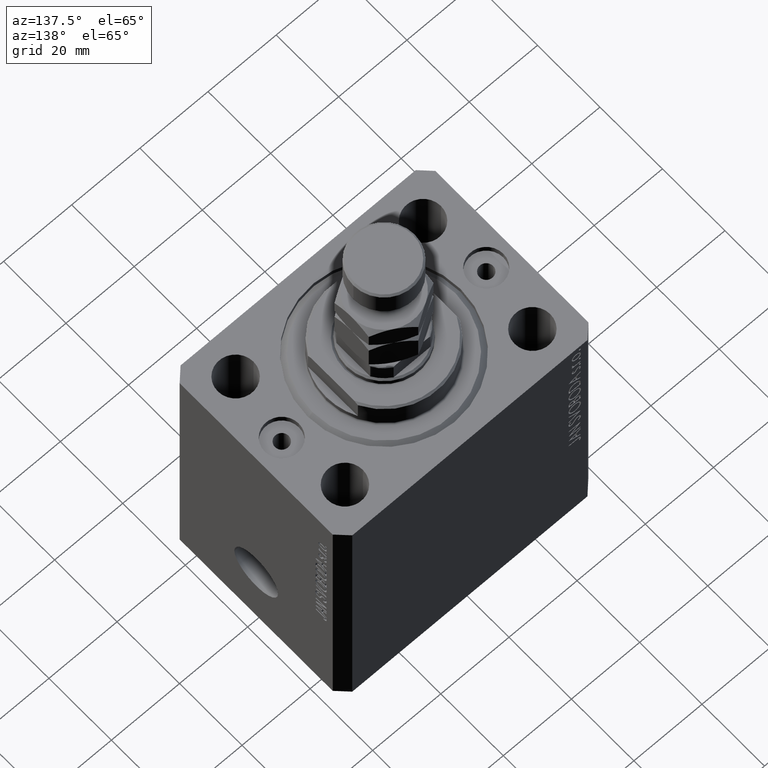
[diagram: clean part render]
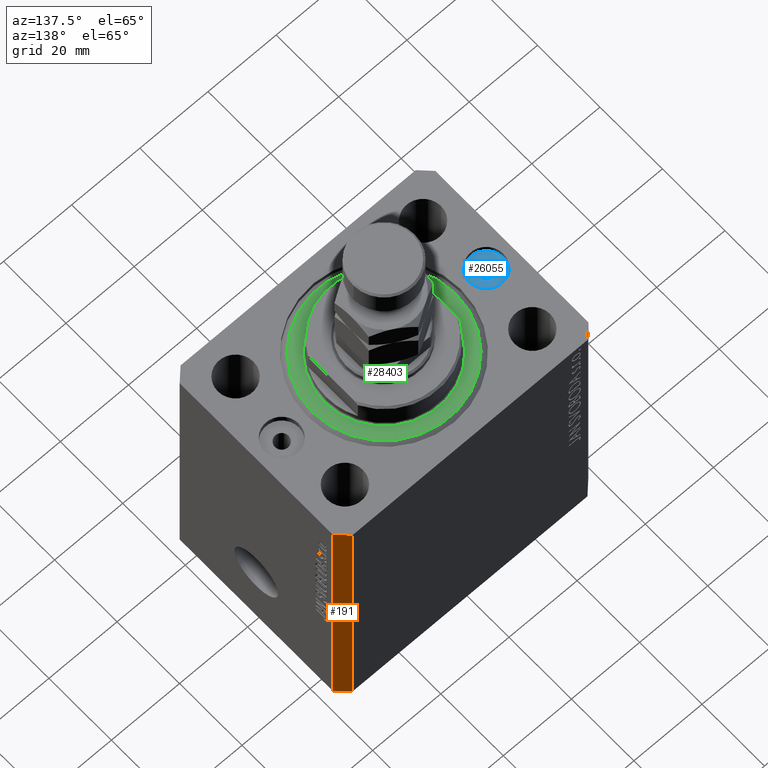
[diagram: same view with three faces highlighted in distinct colors, each labeled with its STEP entity id]
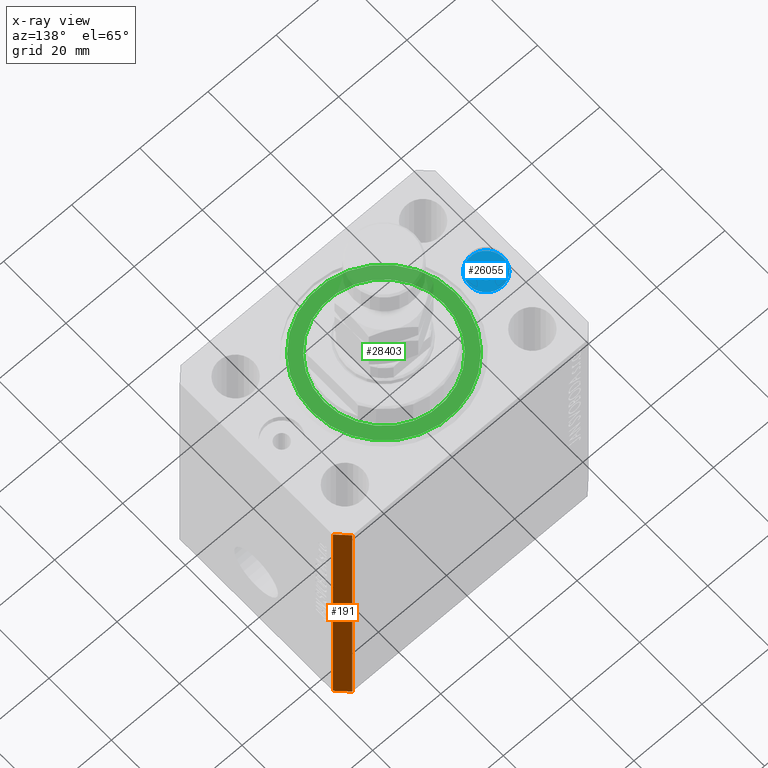
[diagram: x-ray of the same camera — body ghosted, the three highlighted faces saturated]
A machine part, auxiliary view with three faces highlighted in distinct colors.
The next image is the same camera in x-ray (body ghosted, the three faces saturated) — at least one of them is partly hidden behind the body in this view.
Their STEP definitions:

[orange] entity #191 — the highlighted planar face has unit normal (0.7071, 0.7071, 0).
#191 = ADVANCED_FACE ( 'NONE', ( #25370 ), #28414, .T. ) ;
#4377 = ORIENTED_EDGE ( 'NONE', *, *, #36372, .F. ) ;
#4619 = EDGE_CURVE ( 'NONE', #36504, #10975, #15011, .T. ) ;
#5977 = VECTOR ( 'NONE', #41393, 1000.000000000000000 ) ;
#6267 = VERTEX_POINT ( 'NONE', #34941 ) ;
#6666 = AXIS2_PLACEMENT_3D ( 'NONE', #42137, #42615, #14168 ) ;
#9841 = LINE ( 'NONE', #31305, #43886 ) ;
#10047 = DIRECTION ( 'NONE',  ( -0.7071067811865364705, 0.7071067811865584529, 0.000000000000000000 ) ) ;
#10975 = VERTEX_POINT ( 'NONE', #31612 ) ;
#12194 = DIRECTION ( 'NONE',  ( 0.000000000000000000, 0.000000000000000000, 1.000000000000000000 ) ) ;
#13976 = ORIENTED_EDGE ( 'NONE', *, *, #15030, .T. ) ;
#13984 = EDGE_LOOP ( 'NONE', ( #4377, #19964, #13976, #45891 ) ) ;
#14168 = DIRECTION ( 'NONE',  ( -0.7071067811865364705, 0.7071067811865584529, 0.000000000000000000 ) ) ;
#14767 = CARTESIAN_POINT ( 'NONE',  ( 34.50000000000056843, 27.50000000000000000, -80.00000000000000000 ) ) ;
#15011 = LINE ( 'NONE', #14767, #22751 ) ;
#15030 = EDGE_CURVE ( 'NONE', #34639, #36504, #9841, .T. ) ;
#17730 = LINE ( 'NONE', #31982, #21520 ) ;
#19964 = ORIENTED_EDGE ( 'NONE', *, *, #25225, .F. ) ;
#21233 = CARTESIAN_POINT ( 'NONE',  ( 34.50000000000056843, 27.50000000000000000, -80.00000000000000000 ) ) ;
#21520 = VECTOR ( 'NONE', #10047, 1000.000000000000114 ) ;
#22479 = CARTESIAN_POINT ( 'NONE',  ( 37.50000000000051870, 24.49999999999995381, -80.00000000000000000 ) ) ;
#22751 = VECTOR ( 'NONE', #12194, 1000.000000000000000 ) ;
#25225 = EDGE_CURVE ( 'NONE', #34639, #6267, #37892, .T. ) ;
#25370 = FACE_OUTER_BOUND ( 'NONE', #13984, .T. ) ;
#28414 = PLANE ( 'NONE',  #6666 ) ;
#31305 = CARTESIAN_POINT ( 'NONE',  ( 37.50000000000051870, 24.49999999999995381, -80.00000000000000000 ) ) ;
#31612 = CARTESIAN_POINT ( 'NONE',  ( 34.50000000000056843, 27.50000000000000000, 0.000000000000000000 ) ) ;
#31982 = CARTESIAN_POINT ( 'NONE',  ( 37.50000000000051870, 24.49999999999995381, 0.000000000000000000 ) ) ;
#34639 = VERTEX_POINT ( 'NONE', #22479 ) ;
#34781 = DIRECTION ( 'NONE',  ( -0.7071067811865364705, 0.7071067811865584529, 0.000000000000000000 ) ) ;
#34941 = CARTESIAN_POINT ( 'NONE',  ( 37.50000000000051870, 24.49999999999995381, 0.000000000000000000 ) ) ;
#36372 = EDGE_CURVE ( 'NONE', #6267, #10975, #17730, .T. ) ;
#36504 = VERTEX_POINT ( 'NONE', #21233 ) ;
#37892 = LINE ( 'NONE', #44684, #5977 ) ;
#41393 = DIRECTION ( 'NONE',  ( 0.000000000000000000, 0.000000000000000000, 1.000000000000000000 ) ) ;
#42137 = CARTESIAN_POINT ( 'NONE',  ( 37.50000000000051870, 24.49999999999995381, -80.00000000000000000 ) ) ;
#42615 = DIRECTION ( 'NONE',  ( 0.7071067811865585639, 0.7071067811865365815, -0.000000000000000000 ) ) ;
#43886 = VECTOR ( 'NONE', #34781, 1000.000000000000114 ) ;
#44684 = CARTESIAN_POINT ( 'NONE',  ( 37.50000000000051870, 24.49999999999995381, -80.00000000000000000 ) ) ;
#45891 = ORIENTED_EDGE ( 'NONE', *, *, #4619, .T. ) ;

[blue] entity #26055 — the highlighted planar face has unit normal (0, 0, 1).
#790 = VERTEX_POINT ( 'NONE', #42145 ) ;
#1301 = AXIS2_PLACEMENT_3D ( 'NONE', #8698, #32976, #4748 ) ;
#1708 = DIRECTION ( 'NONE',  ( 1.000000000000000000, 0.000000000000000000, 0.000000000000000000 ) ) ;
#2250 = DIRECTION ( 'NONE',  ( 1.000000000000000000, 0.000000000000000000, -0.000000000000000000 ) ) ;
#4748 = DIRECTION ( 'NONE',  ( 1.000000000000000000, 0.000000000000000000, 0.000000000000000000 ) ) ;
#5646 = CARTESIAN_POINT ( 'NONE',  ( -30.00000000000000000, 0.000000000000000000, -1.899999999999999911 ) ) ;
#5729 = DIRECTION ( 'NONE',  ( 0.000000000000000000, 0.000000000000000000, 1.000000000000000000 ) ) ;
#7429 = CIRCLE ( 'NONE', #33517, 5.000000000000000888 ) ;
#7823 = ORIENTED_EDGE ( 'NONE', *, *, #18984, .T. ) ;
#8698 = CARTESIAN_POINT ( 'NONE',  ( -30.00000000000000000, 0.000000000000000000, -1.899999999999999911 ) ) ;
#10163 = CARTESIAN_POINT ( 'NONE',  ( -30.00000000000000000, 0.000000000000000000, -1.899999999999999911 ) ) ;
#10484 = CARTESIAN_POINT ( 'NONE',  ( -32.00000000000000000, 2.449293598294701977E-16, -1.899999999999999911 ) ) ;
#10992 = CARTESIAN_POINT ( 'NONE',  ( -30.00000000000000000, 0.000000000000000000, -1.899999999999999911 ) ) ;
#12708 = CIRCLE ( 'NONE', #35029, 1.999999999999998224 ) ;
#13555 = VERTEX_POINT ( 'NONE', #10484 ) ;
#13979 = AXIS2_PLACEMENT_3D ( 'NONE', #10992, #32687, #15192 ) ;
#15192 = DIRECTION ( 'NONE',  ( 1.000000000000000000, 0.000000000000000000, 0.000000000000000000 ) ) ;
#15711 = EDGE_LOOP ( 'NONE', ( #44248, #25086 ) ) ;
#16462 = FACE_BOUND ( 'NONE', #15711, .T. ) ;
#17510 = CARTESIAN_POINT ( 'NONE',  ( -28.00000000000000000, 0.000000000000000000, -1.899999999999999911 ) ) ;
#18091 = DIRECTION ( 'NONE',  ( 0.000000000000000000, 0.000000000000000000, 1.000000000000000000 ) ) ;
#18984 = EDGE_CURVE ( 'NONE', #29156, #790, #21413, .T. ) ;
#20563 = ORIENTED_EDGE ( 'NONE', *, *, #43079, .T. ) ;
#21413 = CIRCLE ( 'NONE', #13979, 5.000000000000000888 ) ;
#22365 = AXIS2_PLACEMENT_3D ( 'NONE', #41189, #5729, #2250 ) ;
#23695 = VERTEX_POINT ( 'NONE', #17510 ) ;
#24391 = DIRECTION ( 'NONE',  ( 1.000000000000000000, 0.000000000000000000, 0.000000000000000000 ) ) ;
#25086 = ORIENTED_EDGE ( 'NONE', *, *, #34676, .F. ) ;
#26055 = ADVANCED_FACE ( 'NONE', ( #16462, #31606 ), #45818, .T. ) ;
#29156 = VERTEX_POINT ( 'NONE', #36175 ) ;
#30156 = DIRECTION ( 'NONE',  ( 0.000000000000000000, 0.000000000000000000, 1.000000000000000000 ) ) ;
#31606 = FACE_OUTER_BOUND ( 'NONE', #45533, .T. ) ;
#32687 = DIRECTION ( 'NONE',  ( 0.000000000000000000, 0.000000000000000000, 1.000000000000000000 ) ) ;
#32976 = DIRECTION ( 'NONE',  ( 0.000000000000000000, 0.000000000000000000, 1.000000000000000000 ) ) ;
#33517 = AXIS2_PLACEMENT_3D ( 'NONE', #5646, #30156, #1708 ) ;
#34676 = EDGE_CURVE ( 'NONE', #13555, #23695, #35530, .T. ) ;
#35029 = AXIS2_PLACEMENT_3D ( 'NONE', #10163, #18091, #24391 ) ;
#35530 = CIRCLE ( 'NONE', #1301, 1.999999999999998224 ) ;
#36175 = CARTESIAN_POINT ( 'NONE',  ( -24.99999999999999645, 0.000000000000000000, -1.899999999999999911 ) ) ;
#41189 = CARTESIAN_POINT ( 'NONE',  ( -30.00000000000000000, 0.000000000000000000, -1.899999999999999911 ) ) ;
#42145 = CARTESIAN_POINT ( 'NONE',  ( -34.99999999999999289, 6.123233995736768255E-16, -1.899999999999999911 ) ) ;
#43079 = EDGE_CURVE ( 'NONE', #790, #29156, #7429, .T. ) ;
#44248 = ORIENTED_EDGE ( 'NONE', *, *, #44915, .F. ) ;
#44915 = EDGE_CURVE ( 'NONE', #23695, #13555, #12708, .T. ) ;
#45533 = EDGE_LOOP ( 'NONE', ( #7823, #20563 ) ) ;
#45818 = PLANE ( 'NONE',  #22365 ) ;

[green] entity #28403 — the highlighted planar face has unit normal (0, 0, -1).
#1282 = ORIENTED_EDGE ( 'NONE', *, *, #29382, .T. ) ;
#1362 = AXIS2_PLACEMENT_3D ( 'NONE', #15827, #30062, #44268 ) ;
#3080 = CIRCLE ( 'NONE', #18731, 20.99999999999998934 ) ;
#3851 = CARTESIAN_POINT ( 'NONE',  ( 17.50000000000000000, 0.000000000000000000, -2.168404344971008868E-16 ) ) ;
#3928 = ORIENTED_EDGE ( 'NONE', *, *, #41473, .T. ) ;
#5597 = VERTEX_POINT ( 'NONE', #31106 ) ;
#5599 = FACE_OUTER_BOUND ( 'NONE', #24792, .T. ) ;
#8869 = CARTESIAN_POINT ( 'NONE',  ( 0.000000000000000000, 0.000000000000000000, 0.000000000000000000 ) ) ;
#9917 = VERTEX_POINT ( 'NONE', #3851 ) ;
#10076 = ORIENTED_EDGE ( 'NONE', *, *, #17824, .T. ) ;
#10110 = CIRCLE ( 'NONE', #12356, 17.50000000000000000 ) ;
#11342 = VERTEX_POINT ( 'NONE', #30144 ) ;
#12356 = AXIS2_PLACEMENT_3D ( 'NONE', #21072, #42058, #38554 ) ;
#13359 = AXIS2_PLACEMENT_3D ( 'NONE', #44010, #25606, #32838 ) ;
#15827 = CARTESIAN_POINT ( 'NONE',  ( 0.000000000000000000, 0.000000000000000000, 0.000000000000000000 ) ) ;
#17824 = EDGE_CURVE ( 'NONE', #5597, #9917, #10110, .T. ) ;
#18731 = AXIS2_PLACEMENT_3D ( 'NONE', #22817, #37031, #27028 ) ;
#19114 = FACE_BOUND ( 'NONE', #25009, .T. ) ;
#21072 = CARTESIAN_POINT ( 'NONE',  ( 0.000000000000000000, 0.000000000000000000, 0.000000000000000000 ) ) ;
#22817 = CARTESIAN_POINT ( 'NONE',  ( 0.000000000000000000, 0.000000000000000000, 0.000000000000000000 ) ) ;
#24792 = EDGE_LOOP ( 'NONE', ( #1282, #3928 ) ) ;
#25009 = EDGE_LOOP ( 'NONE', ( #32263, #10076 ) ) ;
#25606 = DIRECTION ( 'NONE',  ( -0.000000000000000000, -0.000000000000000000, -1.000000000000000000 ) ) ;
#27028 = DIRECTION ( 'NONE',  ( 1.000000000000000000, 0.000000000000000000, 0.000000000000000000 ) ) ;
#27428 = CIRCLE ( 'NONE', #1362, 17.50000000000000000 ) ;
#28403 = ADVANCED_FACE ( 'NONE', ( #19114, #5599 ), #30566, .F. ) ;
#28889 = CARTESIAN_POINT ( 'NONE',  ( -20.99999999999998934, 2.663606788145492628E-15, 0.000000000000000000 ) ) ;
#29382 = EDGE_CURVE ( 'NONE', #11342, #30173, #3080, .T. ) ;
#30062 = DIRECTION ( 'NONE',  ( 0.000000000000000000, 0.000000000000000000, 1.000000000000000000 ) ) ;
#30144 = CARTESIAN_POINT ( 'NONE',  ( 20.99999999999998934, 0.000000000000000000, 0.000000000000000000 ) ) ;
#30173 = VERTEX_POINT ( 'NONE', #28889 ) ;
#30566 = PLANE ( 'NONE',  #31353 ) ;
#31106 = CARTESIAN_POINT ( 'NONE',  ( -17.50000000000000000, 2.143131898507868643E-15, -2.168404344971008868E-16 ) ) ;
#31353 = AXIS2_PLACEMENT_3D ( 'NONE', #8869, #34048, #37323 ) ;
#32263 = ORIENTED_EDGE ( 'NONE', *, *, #37694, .T. ) ;
#32838 = DIRECTION ( 'NONE',  ( 1.000000000000000000, 0.000000000000000000, 0.000000000000000000 ) ) ;
#34048 = DIRECTION ( 'NONE',  ( 0.000000000000000000, 0.000000000000000000, 1.000000000000000000 ) ) ;
#37031 = DIRECTION ( 'NONE',  ( -0.000000000000000000, -0.000000000000000000, -1.000000000000000000 ) ) ;
#37323 = DIRECTION ( 'NONE',  ( 1.000000000000000000, 0.000000000000000000, -0.000000000000000000 ) ) ;
#37694 = EDGE_CURVE ( 'NONE', #9917, #5597, #27428, .T. ) ;
#38554 = DIRECTION ( 'NONE',  ( 1.000000000000000000, 0.000000000000000000, 0.000000000000000000 ) ) ;
#41473 = EDGE_CURVE ( 'NONE', #30173, #11342, #45380, .T. ) ;
#42058 = DIRECTION ( 'NONE',  ( 0.000000000000000000, 0.000000000000000000, 1.000000000000000000 ) ) ;
#44010 = CARTESIAN_POINT ( 'NONE',  ( 0.000000000000000000, 0.000000000000000000, 0.000000000000000000 ) ) ;
#44268 = DIRECTION ( 'NONE',  ( 1.000000000000000000, 0.000000000000000000, 0.000000000000000000 ) ) ;
#45380 = CIRCLE ( 'NONE', #13359, 20.99999999999998934 ) ;